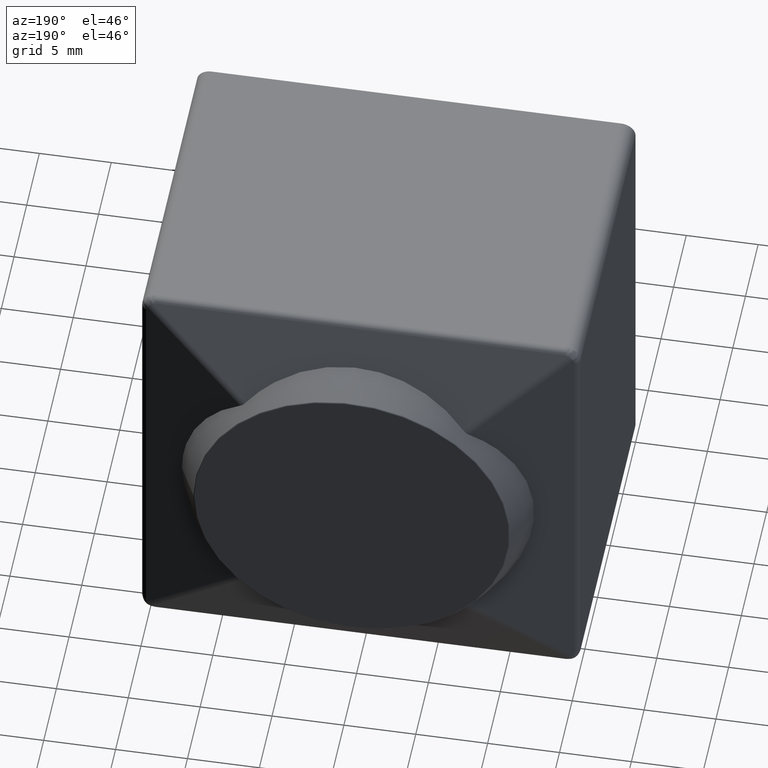
[diagram: clean part render]
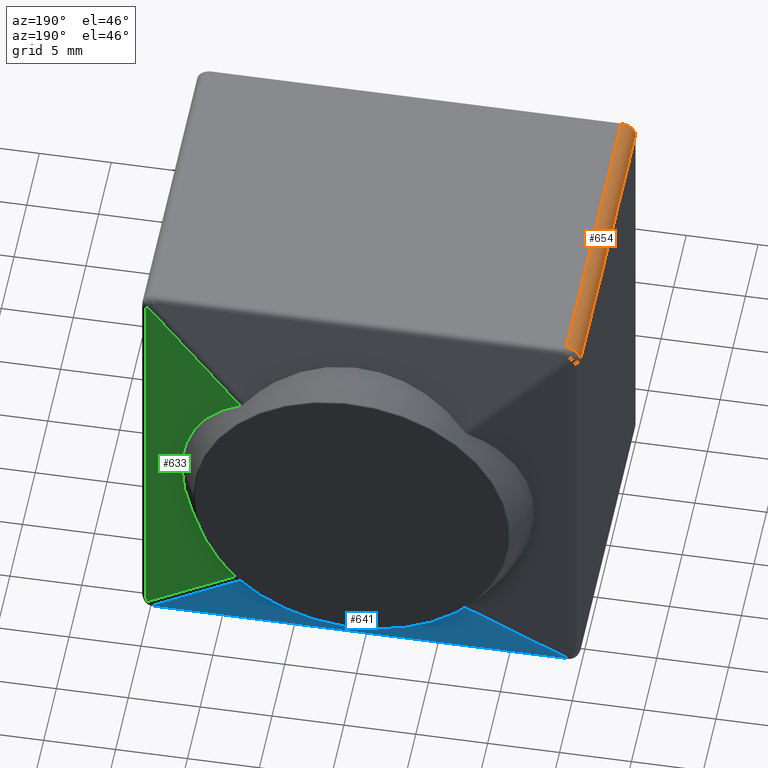
[diagram: same view with three faces highlighted in distinct colors, each labeled with its STEP entity id]
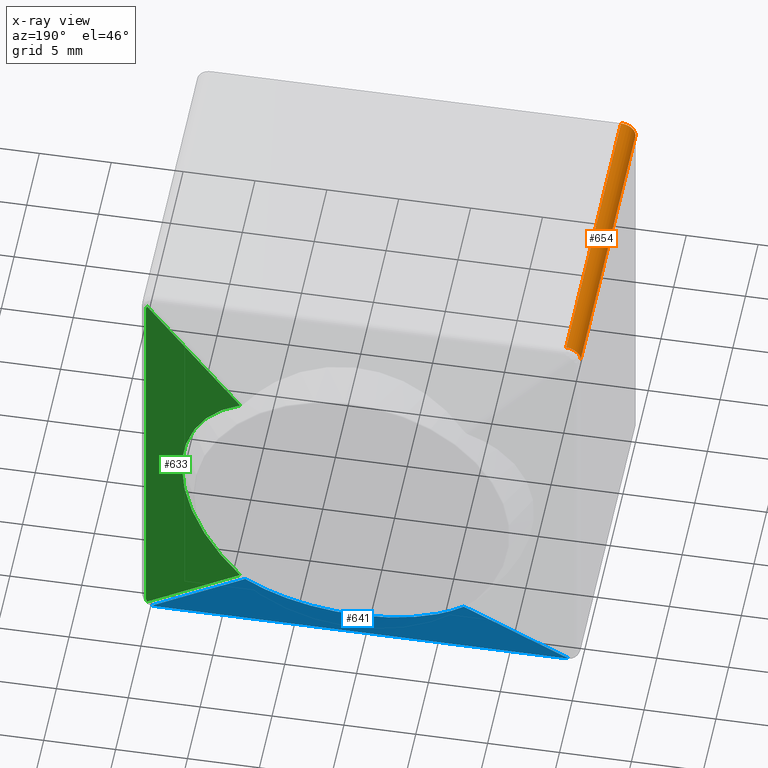
[diagram: x-ray of the same camera — body ghosted, the three highlighted faces saturated]
A machine part, auxiliary view with three faces highlighted in distinct colors.
The next image is the same camera in x-ray (body ghosted, the three faces saturated) — at least one of them is partly hidden behind the body in this view.
Their STEP definitions:

[orange] entity #654 — the highlighted cylindrical surface (edge-blend (fillet) strip) has radius 1 mm, axis along (0, -1, 0).
#24=CYLINDRICAL_SURFACE('',#727,1.);
#49=B_SPLINE_CURVE_WITH_KNOTS('',3,(#1365,#1366,#1367,#1368),
 .UNSPECIFIED.,.F.,.F.,(4,4),(-0.0240290409124116,0.),.UNSPECIFIED.);
#68=ELLIPSE('',#722,1.0137790318941,1.);
#70=ELLIPSE('',#726,1.01700223835156,1.);
#92=CIRCLE('',#715,1.);
#134=FACE_OUTER_BOUND('',#178,.T.);
#178=EDGE_LOOP('',(#579,#580,#581,#582,#583,#584));
#216=LINE('',#1285,#256);
#219=LINE('',#1374,#259);
#256=VECTOR('',#879,21.6519933315227);
#259=VECTOR('',#904,21.6395591301993);
#311=VERTEX_POINT('',#1277);
#312=VERTEX_POINT('',#1279);
#313=VERTEX_POINT('',#1283);
#317=VERTEX_POINT('',#1315);
#318=VERTEX_POINT('',#1317);
#320=VERTEX_POINT('',#1342);
#395=EDGE_CURVE('',#312,#311,#92,.T.);
#398=EDGE_CURVE('',#311,#313,#216,.T.);
#404=EDGE_CURVE('',#317,#318,#68,.T.);
#408=EDGE_CURVE('',#320,#313,#70,.T.);
#409=EDGE_CURVE('',#318,#320,#49,.T.);
#411=EDGE_CURVE('',#317,#312,#219,.T.);
#579=ORIENTED_EDGE('',*,*,#395,.T.);
#580=ORIENTED_EDGE('',*,*,#398,.T.);
#581=ORIENTED_EDGE('',*,*,#408,.F.);
#582=ORIENTED_EDGE('',*,*,#409,.F.);
#583=ORIENTED_EDGE('',*,*,#404,.F.);
#584=ORIENTED_EDGE('',*,*,#411,.T.);
#654=ADVANCED_FACE('',(#134),#24,.T.);
#715=AXIS2_PLACEMENT_3D('',#1280,#873,#874);
#722=AXIS2_PLACEMENT_3D('',#1318,#892,#893);
#726=AXIS2_PLACEMENT_3D('',#1344,#900,#901);
#727=AXIS2_PLACEMENT_3D('',#1373,#902,#903);
#873=DIRECTION('center_axis',(0.,1.,0.));
#874=DIRECTION('ref_axis',(-0.707106781186547,0.,0.707106781186548));
#879=DIRECTION('',(0.,1.,0.));
#892=DIRECTION('center_axis',(-0.164313011556665,0.986408249272673,-4.56060221689272E-17));
#893=DIRECTION('ref_axis',(-0.986408249272673,-0.164313011556665,0.));
#900=DIRECTION('center_axis',(0.,0.98328200498446,0.182089260182308));
#901=DIRECTION('ref_axis',(0.,-0.182089260182308,0.98328200498446));
#902=DIRECTION('center_axis',(0.,-1.,0.));
#903=DIRECTION('ref_axis',(-0.707106781186547,0.,0.707106781186548));
#904=DIRECTION('',(0.,-1.,0.));
#1277=CARTESIAN_POINT('',(1.,0.,15.25));
#1279=CARTESIAN_POINT('',(0.,0.,14.25));
#1280=CARTESIAN_POINT('Origin',(1.,0.,14.25));
#1283=CARTESIAN_POINT('',(1.,21.6519933315227,15.25));
#1285=CARTESIAN_POINT('',(1.,16.5,15.25));
#1315=CARTESIAN_POINT('',(-2.77555756156289E-16,21.6395591301993,14.25));
#1317=CARTESIAN_POINT('',(0.18657246382543,21.6706378275108,14.8316662646165));
#1318=CARTESIAN_POINT('Origin',(1.,21.8061362159829,14.25));
#1342=CARTESIAN_POINT('',(0.545278096848516,21.6722463912916,15.1406334772477));
#1344=CARTESIAN_POINT('Origin',(1.,21.8371785167079,14.25));
#1365=CARTESIAN_POINT('Ctrl Pts',(0.186572463825433,21.6706378275108,14.8316662646165));
#1366=CARTESIAN_POINT('Ctrl Pts',(0.27804990844628,21.6858758736507,14.9595923227704));
#1367=CARTESIAN_POINT('Ctrl Pts',(0.404585642553634,21.6855486044979,15.068801525934));
#1368=CARTESIAN_POINT('Ctrl Pts',(0.545278096848518,21.6722463912916,15.1406334772477));
#1373=CARTESIAN_POINT('Origin',(1.,16.5,14.25));
#1374=CARTESIAN_POINT('',(0.,16.5,14.25));

[blue] entity #641 — the highlighted planar face has unit normal (0, 0.9377, -0.3473).
#54=ELLIPSE('',#674,10.960727991767,10.1006300433551);
#58=ELLIPSE('',#682,0.533191853662517,0.5);
#61=ELLIPSE('',#694,0.533191853662518,0.5);
#121=FACE_OUTER_BOUND('',#164,.T.);
#164=EDGE_LOOP('',(#513,#514,#515,#516,#517,#518));
#197=LINE('',#1076,#237);
#207=LINE('',#1184,#247);
#210=LINE('',#1189,#250);
#237=VECTOR('',#798,9.53599925715729);
#247=VECTOR('',#840,9.53599925715728);
#250=VECTOR('',#847,28.5);
#279=VERTEX_POINT('',#970);
#280=VERTEX_POINT('',#977);
#286=VERTEX_POINT('',#1034);
#288=VERTEX_POINT('',#1038);
#295=VERTEX_POINT('',#1112);
#298=VERTEX_POINT('',#1117);
#341=EDGE_CURVE('',#279,#280,#54,.T.);
#350=EDGE_CURVE('',#288,#286,#58,.T.);
#356=EDGE_CURVE('',#286,#279,#197,.T.);
#368=EDGE_CURVE('',#298,#295,#61,.T.);
#379=EDGE_CURVE('',#280,#298,#207,.T.);
#382=EDGE_CURVE('',#295,#288,#210,.T.);
#513=ORIENTED_EDGE('',*,*,#350,.F.);
#514=ORIENTED_EDGE('',*,*,#382,.F.);
#515=ORIENTED_EDGE('',*,*,#368,.F.);
#516=ORIENTED_EDGE('',*,*,#379,.F.);
#517=ORIENTED_EDGE('',*,*,#341,.F.);
#518=ORIENTED_EDGE('',*,*,#356,.F.);
#612=PLANE('',#704);
#641=ADVANCED_FACE('',(#121),#612,.T.);
#674=AXIS2_PLACEMENT_3D('',#978,#772,#773);
#682=AXIS2_PLACEMENT_3D('',#1040,#788,#789);
#694=AXIS2_PLACEMENT_3D('',#1119,#821,#822);
#704=AXIS2_PLACEMENT_3D('',#1190,#848,#849);
#772=DIRECTION('center_axis',(0.,0.937748760723704,-0.347314355823594));
#773=DIRECTION('ref_axis',(-2.83972061954677E-15,-0.347314355823594,-0.937748760723704));
#788=DIRECTION('center_axis',(0.,-0.937748760723704,0.347314355823594));
#789=DIRECTION('ref_axis',(3.25346957959113E-16,-0.347314355823594,-0.937748760723704));
#798=DIRECTION('',(-0.721665057442093,0.240425724361,0.6491494557747));
#821=DIRECTION('center_axis',(0.,-0.937748760723704,0.347314355823594));
#822=DIRECTION('ref_axis',(-6.50693915918226E-17,-0.347314355823594,-0.937748760723704));
#840=DIRECTION('',(-0.721665057442093,-0.240425724361,-0.6491494557747));
#847=DIRECTION('',(1.,0.,0.));
#848=DIRECTION('center_axis',(0.,0.937748760723704,-0.347314355823594));
#849=DIRECTION('ref_axis',(0.,0.347314355823594,0.937748760723704));
#970=CARTESIAN_POINT('',(22.8455634998916,24.4338203005615,-8.67868518848405));
#977=CARTESIAN_POINT('',(7.65443650010842,24.4338203005615,-8.67868518848405));
#978=CARTESIAN_POINT('Origin',(15.25,26.9431818181818,-1.90340909090909));
#1034=CARTESIAN_POINT('',(29.7273609515758,22.1411207716535,-14.8689739165356));
#1038=CARTESIAN_POINT('',(29.5,22.1208677118845,-14.9236571779118));
#1040=CARTESIAN_POINT('Origin',(29.5,22.3060528970697,-14.4236571779118));
#1076=CARTESIAN_POINT('',(23.1885915401022,24.3195390780008,-8.98724448939778));
#1112=CARTESIAN_POINT('',(1.,22.1208677118845,-14.9236571779118));
#1117=CARTESIAN_POINT('',(0.772639048424252,22.1411207716535,-14.8689739165356));
#1119=CARTESIAN_POINT('Origin',(1.,22.3060528970697,-14.4236571779118));
#1184=CARTESIAN_POINT('',(8.10947109149968,24.5854169728908,-8.26937417319493));
#1189=CARTESIAN_POINT('',(22.875,22.1208677118845,-14.9236571779118));
#1190=CARTESIAN_POINT('Origin',(30.5,22.,-15.25));

[green] entity #633 — the highlighted planar face has unit normal (0.3161, 0.9487, 0).
#53=ELLIPSE('',#673,11.0685182744593,10.3543661421072);
#56=ELLIPSE('',#678,0.527017955584181,0.5);
#59=ELLIPSE('',#690,0.527017955584181,0.5);
#113=FACE_OUTER_BOUND('',#156,.T.);
#156=EDGE_LOOP('',(#477,#478,#479,#480,#481,#482));
#198=LINE('',#1077,#238);
#202=LINE('',#1086,#242);
#203=LINE('',#1090,#243);
#238=VECTOR('',#799,9.52043506164759);
#242=VECTOR('',#807,28.5);
#243=VECTOR('',#812,9.52043506164759);
#277=VERTEX_POINT('',#961);
#278=VERTEX_POINT('',#968);
#281=VERTEX_POINT('',#1005);
#284=VERTEX_POINT('',#1010);
#293=VERTEX_POINT('',#1085);
#294=VERTEX_POINT('',#1089);
#339=EDGE_CURVE('',#277,#278,#53,.T.);
#346=EDGE_CURVE('',#284,#281,#56,.T.);
#357=EDGE_CURVE('',#278,#284,#198,.T.);
#361=EDGE_CURVE('',#281,#293,#202,.T.);
#363=EDGE_CURVE('',#294,#277,#203,.T.);
#364=EDGE_CURVE('',#293,#294,#59,.T.);
#477=ORIENTED_EDGE('',*,*,#346,.F.);
#478=ORIENTED_EDGE('',*,*,#357,.F.);
#479=ORIENTED_EDGE('',*,*,#339,.F.);
#480=ORIENTED_EDGE('',*,*,#363,.F.);
#481=ORIENTED_EDGE('',*,*,#364,.F.);
#482=ORIENTED_EDGE('',*,*,#361,.F.);
#610=PLANE('',#689);
#633=ADVANCED_FACE('',(#113),#610,.T.);
#673=AXIS2_PLACEMENT_3D('',#969,#770,#771);
#678=AXIS2_PLACEMENT_3D('',#1012,#780,#781);
#689=AXIS2_PLACEMENT_3D('',#1088,#810,#811);
#690=AXIS2_PLACEMENT_3D('',#1091,#813,#814);
#770=DIRECTION('center_axis',(0.316074782687194,0.948734278788979,0.));
#771=DIRECTION('ref_axis',(-0.948734278788978,0.316074782687194,1.11179506169416E-15));
#780=DIRECTION('center_axis',(-0.316074782687194,-0.948734278788979,0.));
#781=DIRECTION('ref_axis',(0.948734278788978,-0.316074782687194,0.));
#799=DIRECTION('',(0.721665057442093,-0.240425724361,-0.6491494557747));
#807=DIRECTION('',(0.,0.,1.));
#810=DIRECTION('center_axis',(0.316074782687194,0.948734278788979,0.));
#811=DIRECTION('ref_axis',(0.,0.,1.));
#812=DIRECTION('',(-0.721665057442093,0.240425724361,-0.6491494557747));
#813=DIRECTION('center_axis',(-0.316074782687194,-0.948734278788979,0.));
#814=DIRECTION('ref_axis',(0.948734278788978,-0.316074782687194,0.));
#961=CARTESIAN_POINT('',(23.1941858437933,24.4339624628338,8.36064789330138));
#968=CARTESIAN_POINT('',(23.1941858437933,24.4339624628338,-8.36064789330138));
#969=CARTESIAN_POINT('Origin',(16.9992397541345,26.4978345952365,0.));
#1005=CARTESIAN_POINT('',(30.1580373913436,22.1139262695938,-14.25));
#1010=CARTESIAN_POINT('',(30.0647511594309,22.1450049669053,-14.5408331323082));
#1012=CARTESIAN_POINT('Origin',(29.6580373913436,22.2805033553773,-14.25));
#1077=CARTESIAN_POINT('',(23.5046663227894,24.3305245960661,-8.63993013357418));
#1085=CARTESIAN_POINT('',(30.1580373913436,22.1139262695938,14.25));
#1086=CARTESIAN_POINT('',(30.1580373913436,22.1139262695938,7.625));
#1088=CARTESIAN_POINT('Origin',(30.5,22.,15.25));
#1089=CARTESIAN_POINT('',(30.0647511594309,22.1450049669053,14.5408331323083));
#1090=CARTESIAN_POINT('',(22.7066036911875,24.596402490956,7.92205981737133));
#1091=CARTESIAN_POINT('Origin',(29.6580373913436,22.2805033553773,14.25));